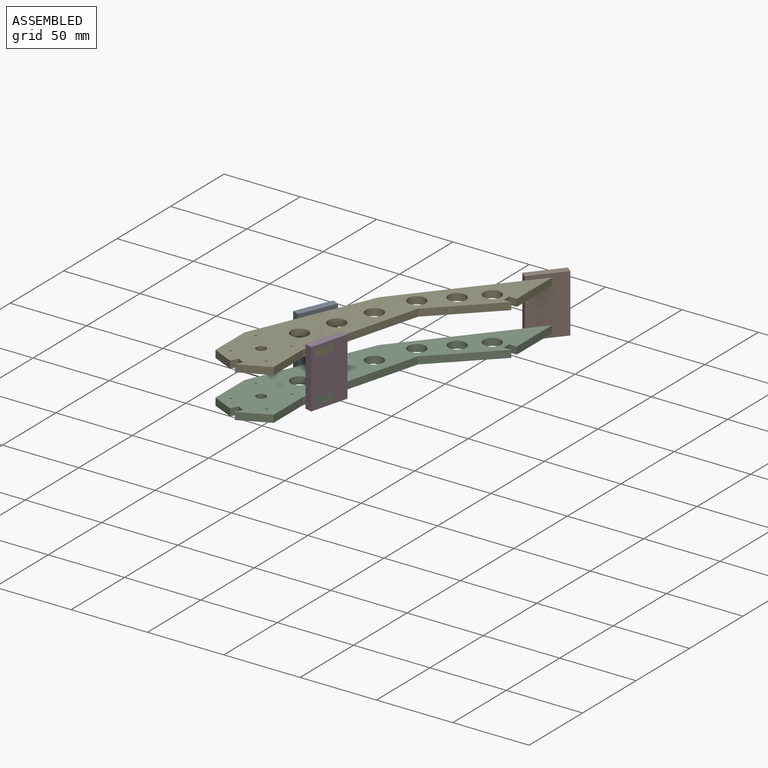
[diagram: assembled view]
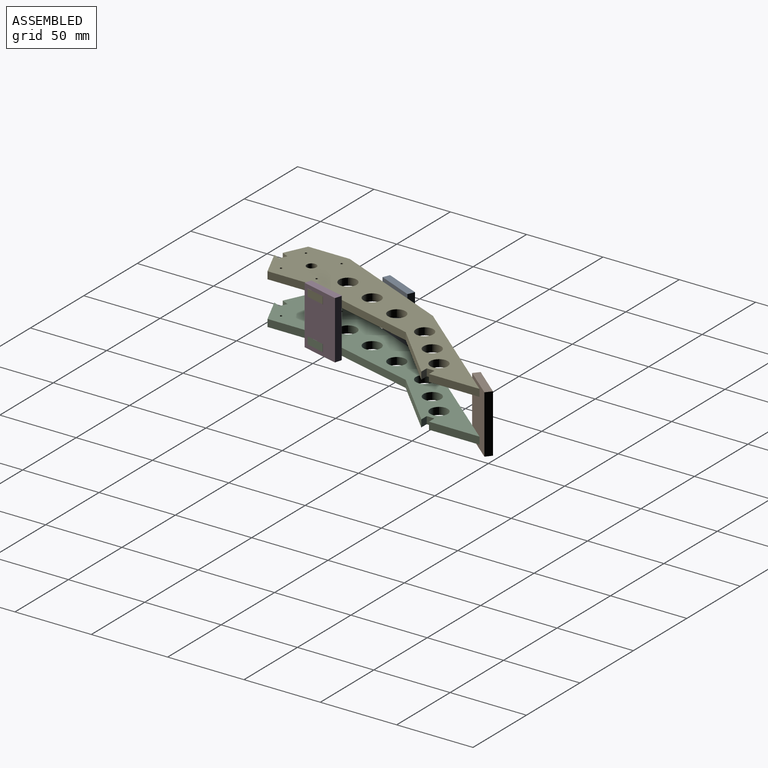
[diagram: assembled view, second angle]
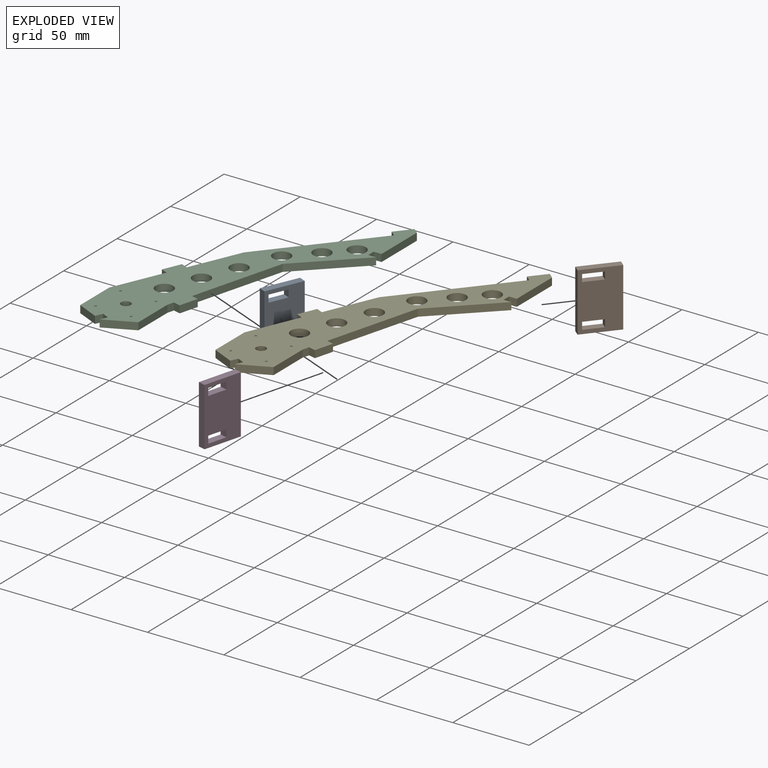
[diagram: exploded view]
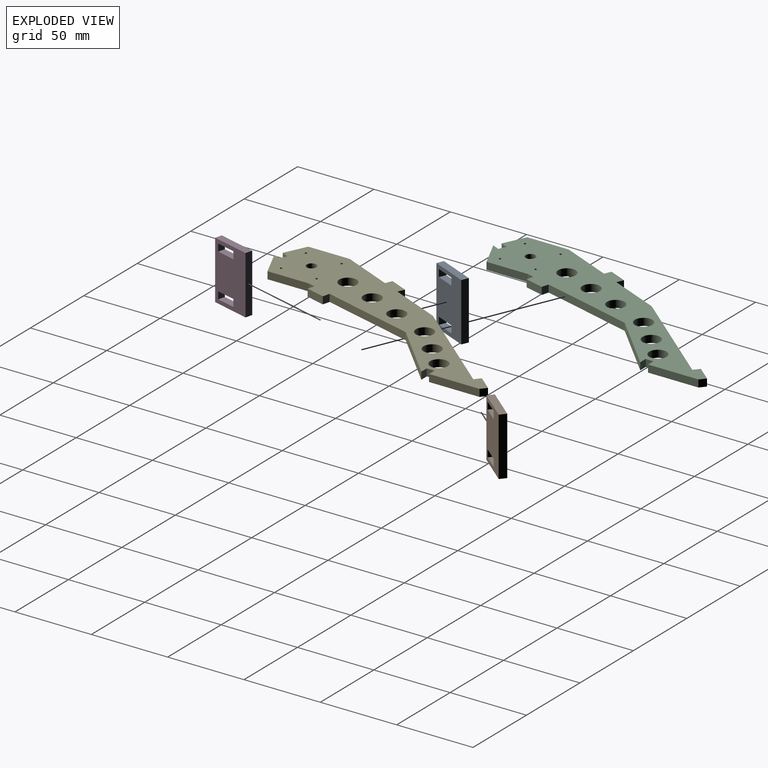
[diagram: exploded view, second angle]
ASSEMBLY  parts=5 mates=4
PART A: 14 faces, bbox 4.8x25.4x38.1 mm
  f0: plane 4.76x4.76mm, normal (0,1,0), area 22.7mm2, adj f1,f11,f12,f13
  f1: plane 12.7x4.76mm, normal (0,0,-1), area 60.5mm2, adj f0,f2,f12,f13
  f2: plane 4.76x4.76mm, normal (0,-1,0), area 22.7mm2, adj f1,f11,f12,f13
  f3: plane 4.76x4.76mm, normal (0,1,0), area 22.7mm2, adj f4,f9,f12,f13
  f4: plane 12.7x4.76mm, normal (0,0,-1), area 60.5mm2, adj f3,f5,f12,f13
  f5: plane 4.76x4.76mm, normal (0,-1,0), area 22.7mm2, adj f4,f9,f12,f13
  f6: plane 38.1x4.76mm, normal (0,1,0), area 181.5mm2, adj f7,f10,f12,f13
  f7: plane 25.4x4.76mm, normal (0,0,1), area 121mm2, adj f6,f8,f12,f13
  f8: plane 38.1x4.76mm, normal (0,-1,0), area 181.5mm2, adj f7,f10,f12,f13
  f9: plane 12.7x4.76mm, normal (0,0,1), area 60.5mm2, adj f3,f5,f12,f13
  f10: plane 25.4x4.76mm, normal (0,0,-1), area 121mm2, adj f6,f8,f12,f13
  f11: plane 12.7x4.76mm, normal (0,0,1), area 60.5mm2, adj f0,f2,f12,f13
  f12: plane 38.1x25.4mm, normal (1,0,0), area 846.8mm2, adj f0,f1,f2,f3,f4,f5,f6,f7
  f13: plane 38.1x25.4mm, normal (-1,0,0), area 846.8mm2, adj f0,f1,f2,f3,f4,f5,f6,f7
PART B: same geometry as A
PART C: 40 faces, bbox 95.3x190.8x4.8 mm
  f0: plane 4.76x4.41mm, normal (0.97,-0.26,0), area 21.7mm2, adj f3,f4,f8,f38
  f1: plane 14.32x6.68mm, normal (-0.42,-0.91,0), area 75.3mm2, adj f3,f4,f17,f28
  f2: plane 33.02x4.76mm, normal (1,0,0), area 157.3mm2, adj f3,f4,f32,f35
  f3: plane 190.82x95.25mm, normal (0,0,1), area 4782.9mm2, adj f0,f1,f2,f5,f6,f7,f8,f9
  f4: plane 190.82x95.25mm, normal (0,0,-1), area 4782.9mm2, adj f0,f1,f2,f5,f6,f7,f8,f9
  f5: plane 33.17x14.29mm, normal (-0.92,0.4,0), area 172mm2, adj f3,f4,f11,f25
  f6: plane 4.76x0.12mm, normal (-0.42,-0.91,0), area 0.7mm2, adj f3,f4,f7,f29
  f7: plane 19.05x8.89mm, normal (0.42,-0.91,0), area 100.1mm2, adj f3,f4,f6,f8
  f8: plane 27.16x4.76mm, normal (1,0,0), area 129.3mm2, adj f0,f3,f4,f7
  f9: plane 61.34x16.44mm, normal (0.97,-0.26,0), area 302.4mm2, adj f3,f4,f10,f37
  f10: plane 36.25x35.59mm, normal (0.7,-0.71,0), area 241.9mm2, adj f3,f4,f9,f31
  f11: plane 63.95x53.5mm, normal (-0.77,0.64,0), area 397.1mm2, adj f3,f4,f5,f34
  f12: plane 33.17x14.29mm, normal (-0.92,0.4,0), area 172mm2, adj f3,f4,f17,f26
  f13: cylinder r=0.76mm len=4.76mm, axis (0,0,-1), area 22.8mm2, adj f3,f4
  f14: cylinder r=0.76mm len=4.76mm, axis (0,0,-1), area 22.8mm2, adj f3,f4
  f15: cylinder r=0.76mm len=4.76mm, axis (0,0,-1), area 22.8mm2, adj f3,f4
  f16: cylinder r=0.76mm len=4.76mm, axis (0,0,-1), area 22.8mm2, adj f3,f4
  f17: plane 27.16x4.76mm, normal (-1,0,0), area 129.3mm2, adj f1,f3,f4,f12
  f18: cylinder r=3.17mm len=6.35mm, axis (0,0,-1), area 95mm2, adj f3,f4
  f19: cylinder r=5.71mm len=11.43mm, axis (0,0,1), area 171mm2, adj f3,f4
  f20: cylinder r=5.71mm len=11.43mm, axis (0,0,1), area 171mm2, adj f3,f4
  f21: cylinder r=5.71mm len=11.43mm, axis (0,0,1), area 171mm2, adj f3,f4
  f22: cylinder r=5.71mm len=11.43mm, axis (0,0,1), area 171mm2, adj f3,f4
  f23: cylinder r=5.71mm len=11.43mm, axis (0,0,1), area 171mm2, adj f3,f4
  f24: cylinder r=5.71mm len=11.43mm, axis (0,0,1), area 171mm2, adj f3,f4
  f25: plane 4.76x4.37mm, normal (0.4,0.92,0), area 22.7mm2, adj f3,f4,f5,f27
  f26: plane 4.76x4.37mm, normal (-0.4,-0.92,0), area 22.7mm2, adj f3,f4,f12,f27
  f27: plane 11.66x5.02mm, normal (-0.92,0.4,0), area 60.5mm2, adj f3,f4,f25,f26
  f28: plane 4.76x4.6mm, normal (0.91,-0.42,0), area 24.2mm2, adj f1,f3,f4,f30
  f29: plane 4.76x4.6mm, normal (-0.91,0.42,0), area 24.2mm2, adj f3,f4,f6,f30
  f30: plane 4.76x4.6mm, normal (-0.42,-0.91,0), area 24.2mm2, adj f3,f4,f28,f29
  f31: plane 5.08x4.76mm, normal (0,1,0), area 24.2mm2, adj f3,f4,f10,f33
  f32: plane 5.08x4.76mm, normal (0,-1,0), area 24.2mm2, adj f2,f3,f4,f33
  f33: plane 5.08x4.76mm, normal (1,0,0), area 24.2mm2, adj f3,f4,f31,f32
  f34: plane 4.76x3.66mm, normal (-0.64,-0.77,0), area 22.7mm2, adj f3,f4,f11,f36
  f35: plane 4.76x3.66mm, normal (0.64,0.77,0), area 22.7mm2, adj f2,f3,f4,f36
  f36: plane 9.74x8.15mm, normal (-0.77,0.64,0), area 60.5mm2, adj f3,f4,f34,f35
  f37: plane 4.76x4.61mm, normal (0.26,0.97,0), area 22.7mm2, adj f3,f4,f9,f39
  f38: plane 4.76x4.61mm, normal (-0.26,-0.97,0), area 22.7mm2, adj f0,f3,f4,f39
  f39: plane 12.27x4.76mm, normal (0.97,-0.26,0), area 60.5mm2, adj f3,f4,f37,f38
PART D: same geometry as A
PART E: same geometry as C
PLACE A rot(axis=(0,0,-1),23.3deg) t=(-108.15,-61.89,51.42)mm
PLACE B rot(axis=(0,0,-1),39.9deg) t=(-32.12,46.54,51.42)mm
PLACE C t=(-103.03,-117.95,34.91)mm
PLACE D rot(axis=(0,0,-1),15deg) t=(-80.17,-92.05,51.42)mm
PLACE E t=(-103.03,-117.95,63.16)mm
MATE fastened B.f5 <-> E.f35  axis (-0.64,-0.77,0) through (-30.49,48.49,65.55)mm
MATE fastened E.f27 <-> A.f13  axis (-0.92,0.4,0) through (-107.14,-59.55,67.93)mm
MATE fastened D.f3 <-> E.f38  axis (0.26,0.97,0) through (-82.8,-101.87,65.55)mm
MATE fastened C.f27 <-> A.f13  axis (-0.92,0.4,0) through (-107.14,-59.55,39.67)mm
